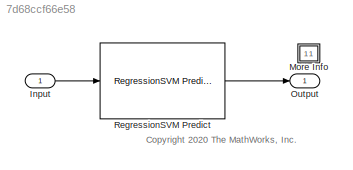
MODEL slx_7d68ccf66e58
KIND model
CONFIG AbsTol = auto
CONFIG EnableMultiTasking = off
CONFIG FixedStep = auto
CONFIG MaxStep = auto
CONFIG MinStep = auto
CONFIG PreLoadFcn = if ~exist("svmMdl","var")\n\nload carbig\nX = [Acceleration,Cylinders,Displacement,Horsepower,Model_Year,Weight];\nY = MPG;\n\nR = rmmissing([X Y]);\nX = R(:,1:end-1);\nY = R(:,end);\n\ntrainedModel = trainRegressionSVMModel(X,Y);\nsvmMdl = trainedModel.RegressionSVM;\n\nload carsmall\ntestX = [Acceleration,Cylinders,Displacement,Horsepower,Model_Year,Weight];\ntestX = rmmissing(testX);\ncarsmallInput.time = (0:s...<+116ch>
CONFIG RelTol = 1e-3
CONFIG SampleTimeConstraint = Unconstrained
CONFIG SolverName = FixedStepDiscrete
CONFIG StartTime = 0.0
CONFIG StopTime = carsmallInput.time(end)
BLOCK [Inport] Input
  PortDimensions = 6
BLOCK [SubSystem] More Info
  OpenFcn = showExample('stats/PredictResponsesUsingRegressionSVMPredictBlockExample')
BLOCK [Outport] Output
BLOCK [Reference] RegressionSVM Predict  REF=statsLibrary/Regression/RegressionSVM Predict
  SourceBlock = statsLibrary/Regression/RegressionSVM Predict
  SourceType = RegressionSVM Predict
ANNOTATION (root): <copyright redacted>
LINE Input:1 -> RegressionSVM Predict:1
LINE RegressionSVM Predict:1 -> Output:1
